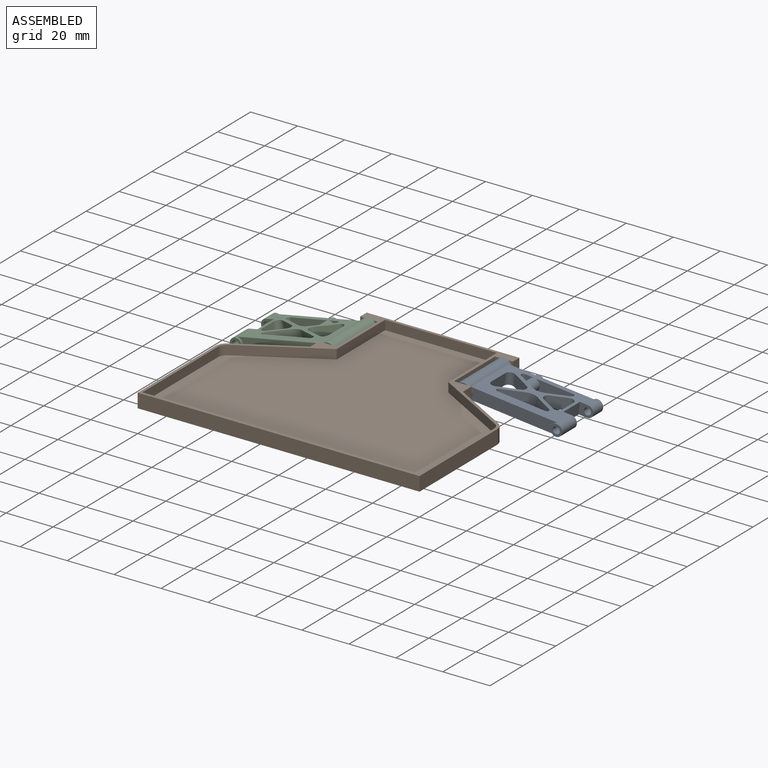
[diagram: assembled view]
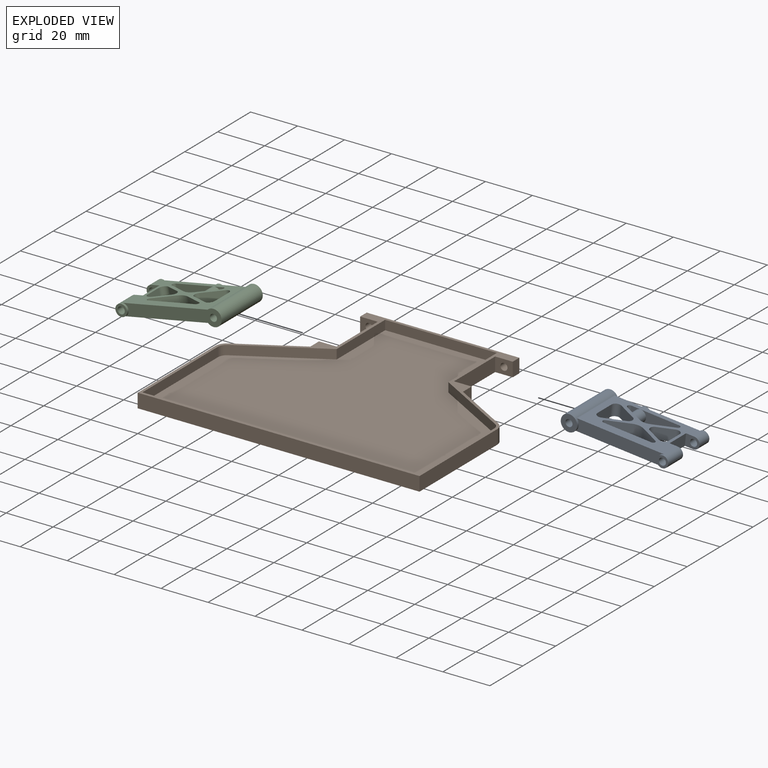
[diagram: exploded view]
GUIDED TOUR — MATED ASSEMBLY (Onshape document acd7721ce6b8d6a2c1b74718, AutoMate assembly acd7721ce6b8d6a2c1b74718_04cc54282d1deeac2c8a38b1_f462e0df83108fd0820fbbd6_default)

This assembly has 3 components, labeled P0..P2 below (a component is one placed occurrence of a part; the same part can appear more than once), held together by 4 mates. A mate is a constraint between two components; its type names the relative motion it leaves free:
  CYLINDRICAL — leaves both rotation about and translation along the listed axis free,
  PLANAR — leaves sliding in the plane through the listed point (normal = the listed direction) and rotation about that normal free.
Axis/direction vectors are unit vectors and 'through' points are millimeter coordinates, both in the assembly's world frame.

MATES
  1. CYLINDRICAL "Cylindrical 1": P0 <-> P1, axis (0.000, -1.000, 0.000) through (88.75, 96.00, 3.00) mm
  2. CYLINDRICAL "Cylindrical 2": P2 <-> P1, axis (0.000, -1.000, 0.000) through (31.25, 96.00, 3.00) mm
  3. PLANAR "Planar 1": P0 <-> P1, direction (0.000, -1.000, 0.000) through (88.75, 71.00, 3.00) mm
  4. PLANAR "Planar 2": P2 <-> P1, direction (0.000, -1.000, 0.000) through (31.25, 71.00, 3.00) mm

ASSEMBLY ORDER
  1. P1 — the base component [order verified]
  2. P2 [order verified]
  3. P0 [order verified]
Order-tag legend:
  [order verified] — this step's position reverses a verified removal order: the component was checked to insert without passing through the ones already placed.

Of the 3 components, 2 carry the full construction recipe — the FeatureScript program that regenerates the part's solid from scratch; the rest are supplied as boundary geometry only.
Each toured component is shown spotlighted twice — in the assembled view, then in the exploded view, where a leader line traces a displaced component back to its assembled socket (saturated green if recipe-attached, orange if geometry-only; every other component desaturated gray) — followed by its recipe or geometry summary and the mates that hold it.
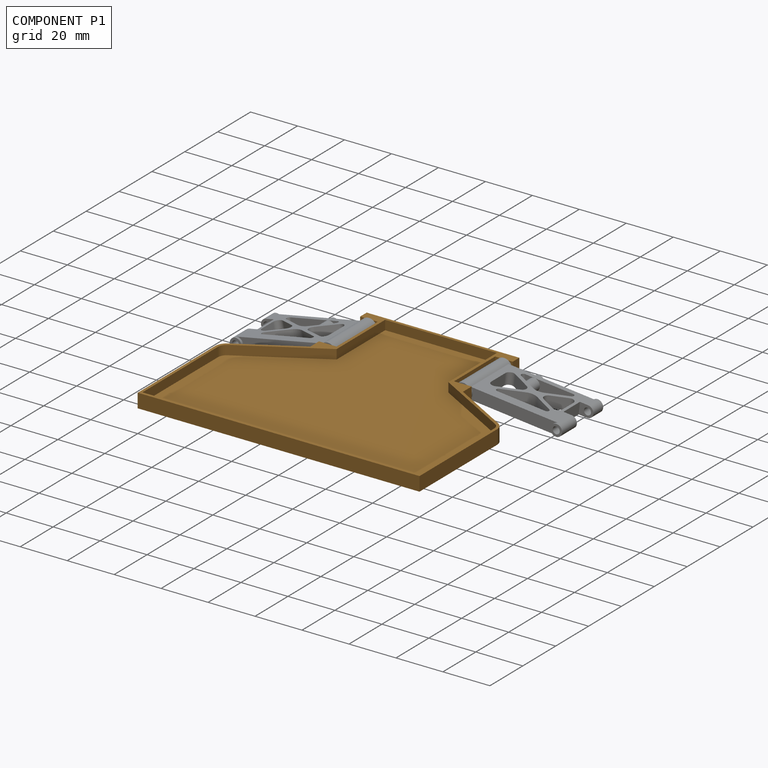
[diagram: component P1 — assembled]
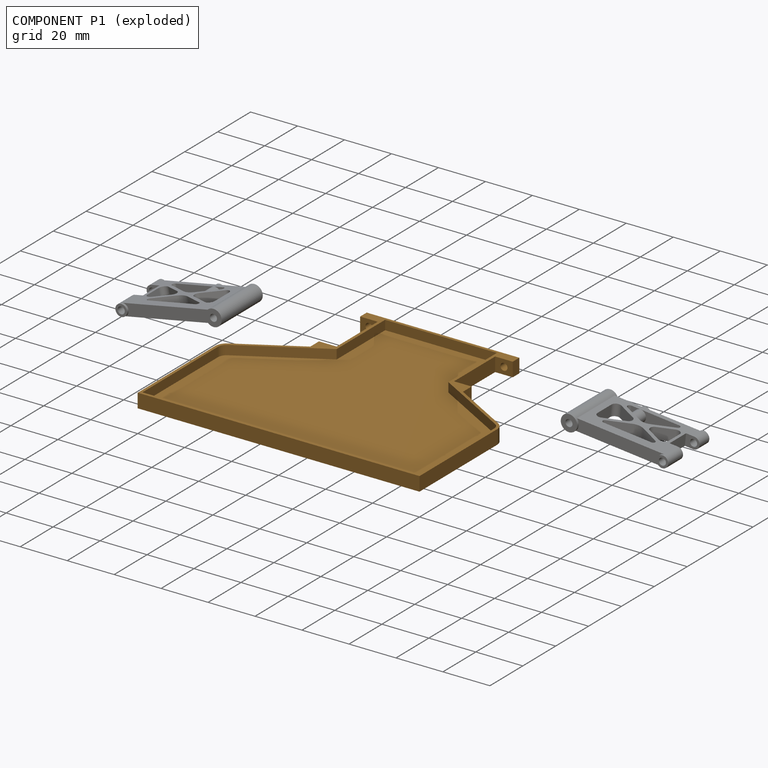
[diagram: component P1 — exploded]
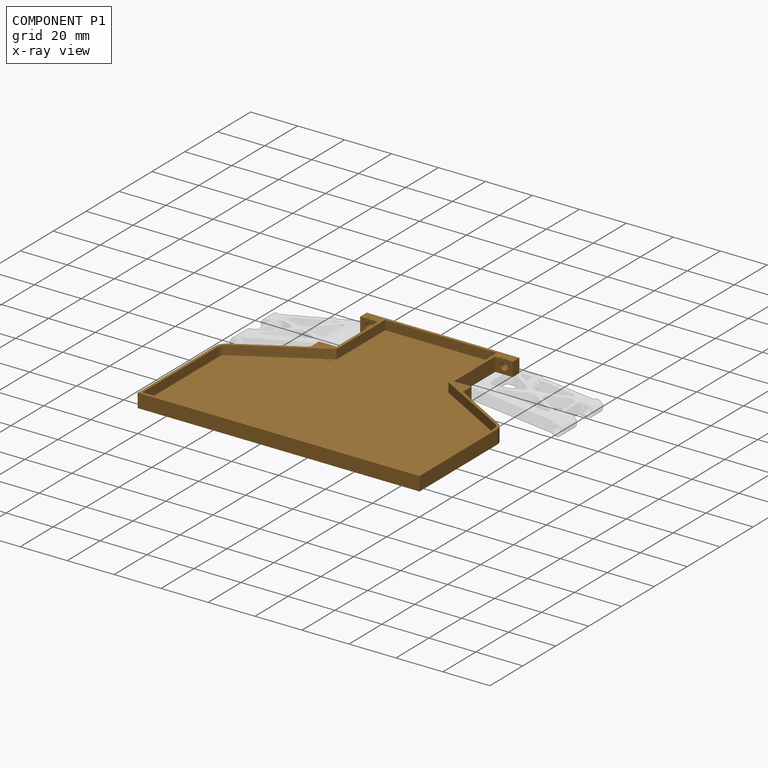
[diagram: component P1 — x-ray view]
COMPONENT P1 — geometry summary (no construction recipe available for this part):
  bounding box: 120.0 x 100.0 x 6.0 mm
  B-rep topology: 1 solid, 38 faces, 204 edges
  volume: 20874 mm^3 (29% of its bounding box)
  symmetry: mirror-symmetric across its x mid-plane
Held by: CYLINDRICAL mate "Cylindrical 1" to P0; CYLINDRICAL mate "Cylindrical 2" to P2; PLANAR mate "Planar 1" to P0; PLANAR mate "Planar 2" to P2.
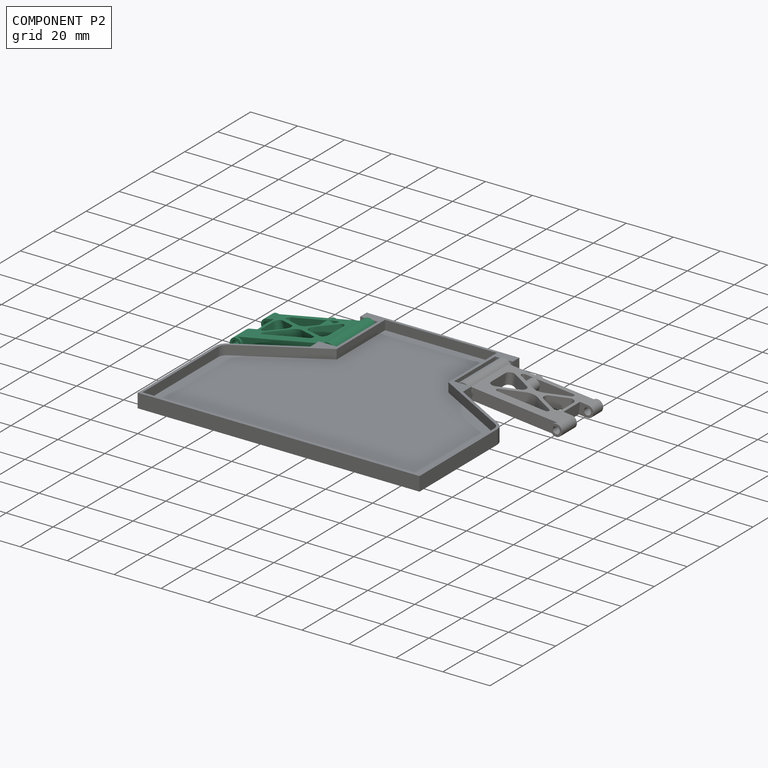
[diagram: component P2 — assembled]
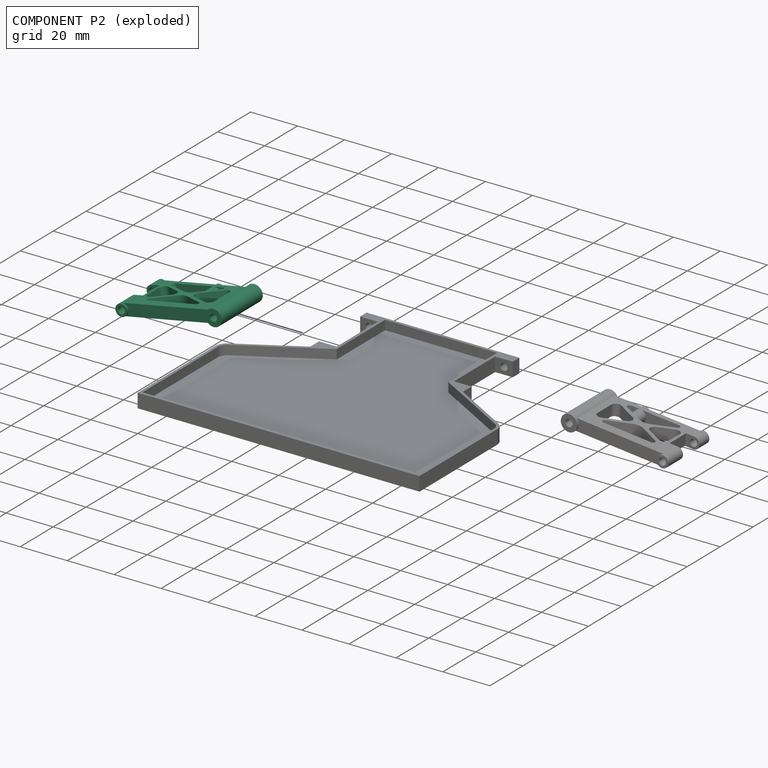
[diagram: component P2 — exploded]
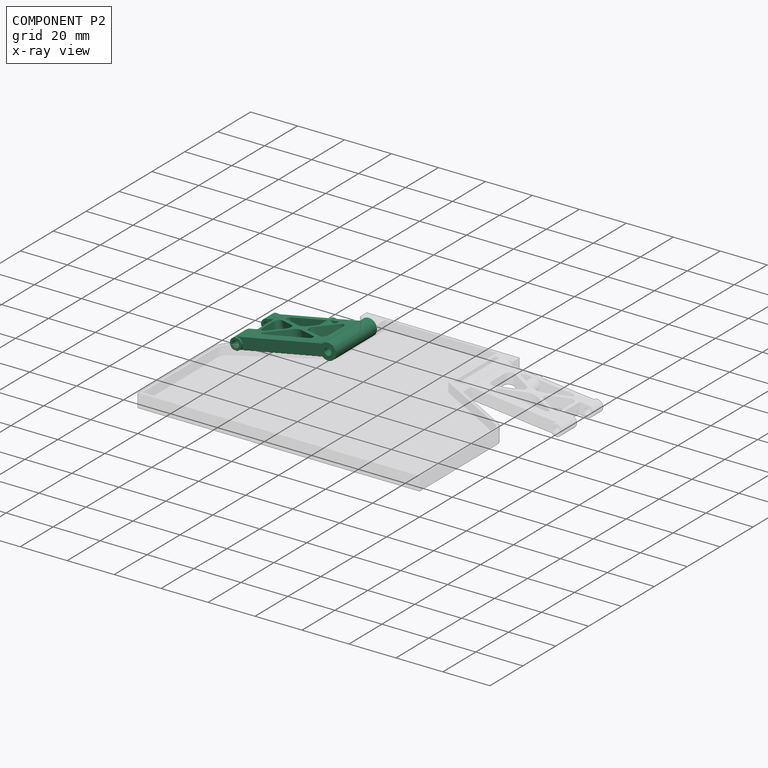
[diagram: component P2 — x-ray view]
COMPONENT P2 — same part as P0 (CADFS 00704449); its construction recipe is shown at P0.
Held by: CYLINDRICAL mate "Cylindrical 2" to P1; PLANAR mate "Planar 2" to P1.
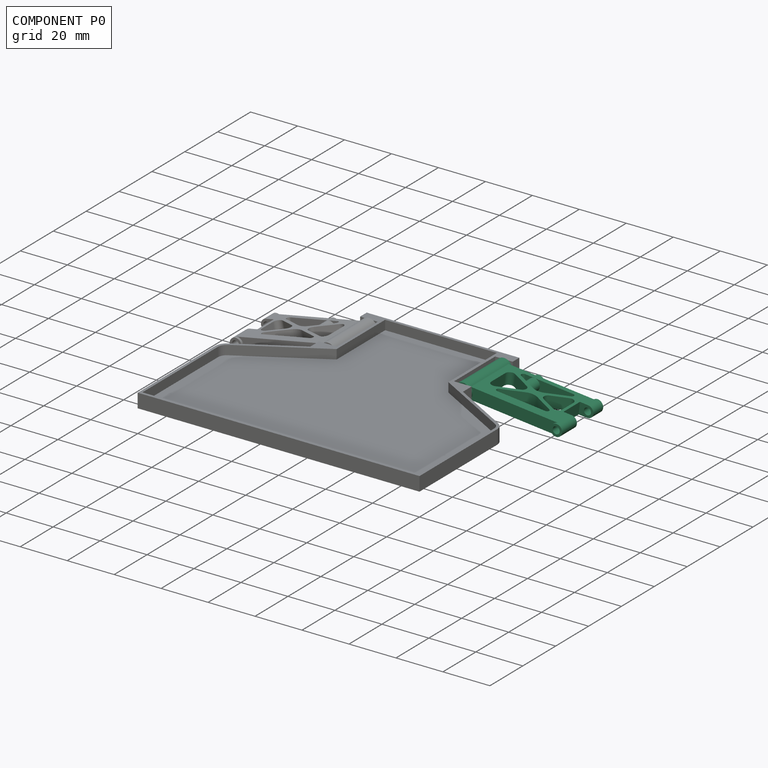
[diagram: component P0 — assembled]
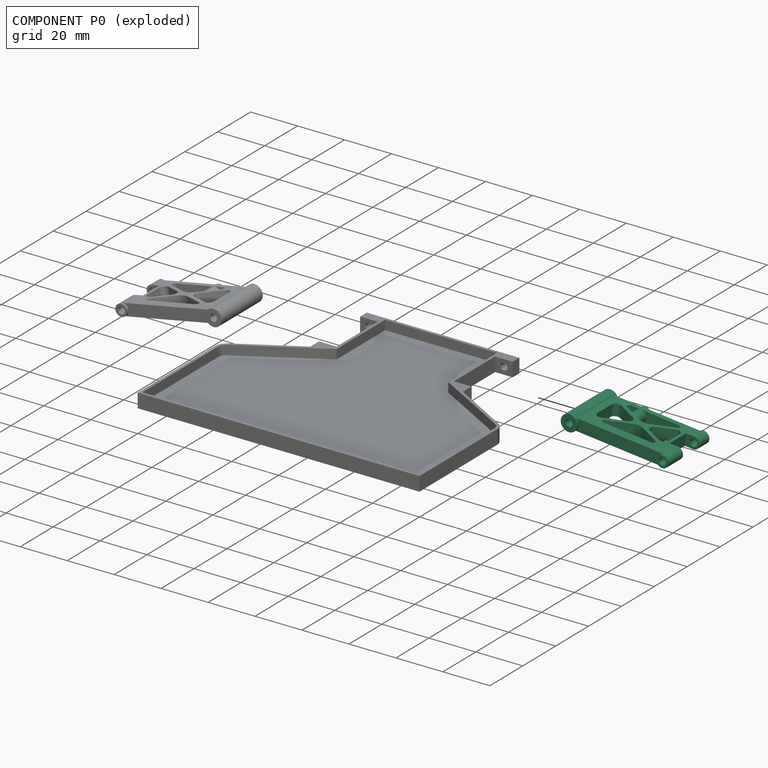
[diagram: component P0 — exploded]
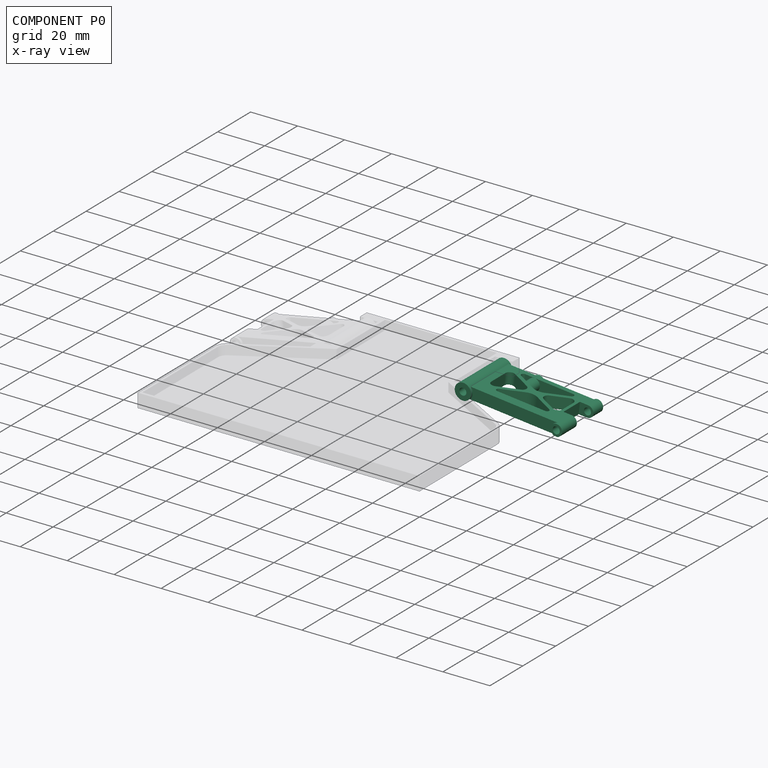
[diagram: component P0 — x-ray view]
COMPONENT P0 — recipe-attached (CADFS 00704449, mesh-verified: the recipe's output STEP matches this component's geometry to below the mesh-comparison resolution (tessellation chordal tolerance ~0.0792 mm)).
Held by: CYLINDRICAL mate "Cylindrical 1" to P1; PLANAR mate "Planar 1" to P1.
Construction recipe (FeatureScript — the CAD program that rebuilds this solid; sketch coordinates are in the units given by the * unit suffixes, e.g. mm):

FeatureScript 2345;
import(path : "onshape/std/geometry.fs", version : "2345.0");
import(path : "onshape/std/common.fs", version : "2345.0");
const mm = millimeter;
const VERTEX = EntityType.VERTEX;
const EDGE = EntityType.EDGE;
const FACE = EntityType.FACE;
const BODY = EntityType.BODY;
function v(x, y){return vector(x, y);}
function OD(order){return orderDisambiguation(order);}
function OSD(set){return originalSetDisambiguation(set);}
function TD(topology){return topologyDisambiguation(topology);}
function TDD(query){return trueDependencyDisambiguation(query);}
function sQuery(a, b, c) {return sketchEntityQuery(a, b, c);}

annotation { "Feature Type Name" : "Feature", "Feature Type Description" : "" }
export const myFeature = defineFeature(function(context is Context, id is Id, definition is map)
    precondition{}
    {
        {
            var Q0;
            Q0=qCreatedBy(makeId("Front.planeOp"),FACE);
            var sketch = newSketch(context, id + "F0", { "sketchPlane" : qUnion([Q0])});
            skCircle(sketch, "E0", {"center": v(0, 0) * mm, "radius": 1.5 * mm});
            skCircle(sketch, "E1", {"center": v(0, 0) * mm, "radius": 3.5 * mm});
            skLineSegment(sketch, "E2", {"start": v(2.45, 2.5) * mm, "end": v(40, 2.5) * mm});
            skLineSegment(sketch, "E3.MirrorCS", {"start": v(2.45, -2.5) * mm, "end": v(40, -2.5) * mm});
            skCircle(sketch, "E4", {"center": v(40, 0) * mm, "radius": 1.5 * mm});
            skCircle(sketch, "E5", {"center": v(40, 0) * mm, "radius": 2.5 * mm});
            skSolve(sketch);
        }
        {
            var Q0;
            Q0=makeQuery(id+"F0.imprint","IMPRINT",FACE,{"disambiguationData":[TD([[makeQuery(id+"F0.imprint","IMPRINT",EDGE,{"derivedFrom":sQuery(id+"F0.wireOp",EDGE,"E0")}),-1.0]])]});
            var Q1;
            {var subQ1=sQuery(id+"F0.wireOp",EDGE,"E2");Q1=makeQuery(id+"F0.imprint","IMPRINT",FACE,{"disambiguationData":[TD([[makeQuery(id+"F0.imprint","IMPRINT",EDGE,{"derivedFrom":subQ1}),-1.0]])]});}
            var Q2;
            Q2=makeQuery(id+"F0.imprint","IMPRINT",FACE,{"disambiguationData":[TD([[makeQuery(id+"F0.imprint","IMPRINT",EDGE,{"derivedFrom":sQuery(id+"F0.wireOp",EDGE,"E4")}),-1.0]])]});
            extrude(context, id + "F1", {"entities" : qUnion([Q0, Q1, Q2]), "oppositeDirection" : true, "depth" : 25 * mm, "offsetDistance" : 25 * mm});
        }
        {
            var Q0;
            {var subQ1=sQuery(id+"F0.wireOp",EDGE,"E2");Q0=makeQuery(id+"F0.imprint","IMPRINT",FACE,{"disambiguationData":[TD([[makeQuery(id+"F0.imprint","IMPRINT",EDGE,{"derivedFrom":subQ1}),-1.0]])]});}
            extrude(context, id + "F2", {"entities" : qUnion([Q0]), "operationType" : NewBodyOperationType.REMOVE, "oppositeDirection" : true, "depth" : 1 * mm, "offsetDistance" : 25 * mm});
        }
        {
            var Q0;
            Q0=makeQuery(id+"F1.opExtrude","SWEPT_FACE",FACE,{"disambiguationData":[OSD([sQuery(id+"F0.wireOp",EDGE,"E2")])]});
            var sketch = newSketch(context, id + "F3", { "sketchPlane" : qUnion([Q0])});
            skLineSegment(sketch, "E6", {"start": v(5.45, 5) * mm, "end": v(37, 5) * mm});
            skLineSegment(sketch, "E7", {"start": v(37, 5) * mm, "end": v(37, 9) * mm});
            skLineSegment(sketch, "E8", {"start": v(37, 22) * mm, "end": v(5.45, 22) * mm});
            skLineSegment(sketch, "E9", {"start": v(5.45, 22) * mm, "end": v(5.45, 5) * mm});
            skLineSegment(sketch, "E10", {"start": v(42.5, 19) * mm, "end": v(42.5, 9) * mm});
            skLineSegment(sketch, "E11", {"start": v(36.5, 19) * mm, "end": v(42.5, 19) * mm});
            skLineSegment(sketch, "E12", {"start": v(36.5, 9) * mm, "end": v(42.5, 9) * mm});
            skLineSegment(sketch, "E13.trimOffspring", {"start": v(37, 19) * mm, "end": v(37, 22) * mm});
            skLineSegment(sketch, "E14", {"start": v(35.42, 22) * mm, "end": v(5.45, 5.85) * mm});
            skLineSegment(sketch, "E15", {"start": v(7.03, 5) * mm, "end": v(37, 21.15) * mm});
            skLineSegment(sketch, "E16", {"start": v(21.22, 22) * mm, "end": v(21.22, 5) * mm, "construction": true});
            skLineSegment(sketch, "E17", {"start": v(5.45, 5) * mm, "end": v(37, 22) * mm, "construction": true});
            skLineSegment(sketch, "E18.MirrorCS", {"start": v(7.03, 22) * mm, "end": v(37, 5.85) * mm});
            skLineSegment(sketch, "E19.MirrorCS", {"start": v(35.42, 5) * mm, "end": v(5.45, 21.15) * mm});
            skLineSegment(sketch, "E20", {"start": v(36.5, 20.88) * mm, "end": v(36.5, 6.12) * mm});
            skLineSegment(sketch, "E21", {"start": v(35.25, 20.2) * mm, "end": v(35.25, 6.8) * mm});
            skSolve(sketch);
        }
        {
            var Q0;
            {var subQ0=sQuery(id+"F3.wireOp",EDGE,"E14");var subQ1=sQuery(id+"F3.wireOp",EDGE,"E9");var subQ2=makeQuery(id+"F3.imprint","INTERSECT",VERTEX,{"derivedFrom":[subQ1,subQ0]});Q0=makeQuery(id+"F3.imprint","IMPRINT",FACE,{"disambiguationData":[TD([[makeQuery(id+"F3.imprint","IMPRINT",EDGE,{"disambiguationData":[TD([[subQ2,1.0]])],"derivedFrom":subQ1}),1.0]])]});}
            var Q1;
            {var subQ0=sQuery(id+"F3.wireOp",EDGE,"E14");var subQ1=sQuery(id+"F3.wireOp",EDGE,"E8");var subQ2=makeQuery(id+"F3.imprint","INTERSECT",VERTEX,{"derivedFrom":[subQ1,subQ0]});Q1=makeQuery(id+"F3.imprint","IMPRINT",FACE,{"disambiguationData":[TD([[makeQuery(id+"F3.imprint","IMPRINT",EDGE,{"disambiguationData":[TD([[subQ2,-1.0]])],"derivedFrom":subQ1}),1.0]])]});}
            var Q2;
            {var subQ0=sQuery(id+"F3.wireOp",EDGE,"E15");var subQ1=sQuery(id+"F3.wireOp",EDGE,"E6");var subQ2=makeQuery(id+"F3.imprint","INTERSECT",VERTEX,{"derivedFrom":[subQ1,subQ0]});Q2=makeQuery(id+"F3.imprint","IMPRINT",FACE,{"disambiguationData":[TD([[makeQuery(id+"F3.imprint","IMPRINT",EDGE,{"disambiguationData":[TD([[subQ2,-1.0]])],"derivedFrom":subQ1}),1.0]])]});}
            var Q3;
            {var subQ0=sQuery(id+"F3.wireOp",EDGE,"E21");Q3=makeQuery(id+"F3.imprint","IMPRINT",FACE,{"disambiguationData":[TD([[makeQuery(id+"F3.imprint","IMPRINT",EDGE,{"derivedFrom":subQ0}),-1.0]])]});}
            var Q4;
            {var subQ4=sQuery(id+"F3.wireOp",EDGE,"E20");var subQ6=sQuery(id+"F3.wireOp",EDGE,"E11");var subQ7=makeQuery(id+"F3.imprint","INTERSECT",VERTEX,{"derivedFrom":[subQ6,subQ4]});Q4=makeQuery(id+"F3.imprint","IMPRINT",FACE,{"disambiguationData":[TD([[makeQuery(id+"F3.imprint","IMPRINT",EDGE,{"disambiguationData":[TD([[subQ7,-1.0]])],"derivedFrom":subQ6}),-1.0]])]});}
            var Q5;
            {var subQ0=sQuery(id+"F3.wireOp",EDGE,"E10");Q5=makeQuery(id+"F3.imprint","IMPRINT",FACE,{"disambiguationData":[TD([[makeQuery(id+"F3.imprint","IMPRINT",EDGE,{"derivedFrom":subQ0}),-1.0]])]});}
            extrude(context, id + "F4", {"entities" : qUnion([Q0, Q1, Q2, Q3, Q4, Q5]), "operationType" : NewBodyOperationType.REMOVE, "oppositeDirection" : true, "depth" : 25 * mm, "offsetDistance" : 25 * mm});
        }
        {
            var Q0;
            Q0=makeQuery(id+"F4.boolean.opBoolean","COPY",EDGE,{"derivedFrom":makeQuery(id+"F4.opExtrude","SWEPT_EDGE",EDGE,{"disambiguationData":[OSD([sQuery(id+"F3.wireOp",EDGE,"E14"),sQuery(id+"F3.wireOp",EDGE,"E18.MirrorCS")])]})});
            var Q1;
            Q1=makeQuery(id+"F4.boolean.opBoolean","COPY",EDGE,{"derivedFrom":makeQuery(id+"F4.opExtrude","SWEPT_EDGE",EDGE,{"disambiguationData":[OSD([sQuery(id+"F3.wireOp",EDGE,"E15"),sQuery(id+"F3.wireOp",EDGE,"E19.MirrorCS")])]})});
            fillet(context, id + "F5", {"entities" : qUnion([Q0, Q1]), "tangentPropagation" : true, "radius" : 5 * mm, "defaultsChanged" : false, "vertexSettings" : [], "allowEdgeOverflow" : false});
        }
        {
            var Q0;
            Q0=makeQuery(id+"F4.boolean.opBoolean","COPY",EDGE,{"derivedFrom":makeQuery(id+"F4.opExtrude","SWEPT_EDGE",EDGE,{"disambiguationData":[OSD([sQuery(id+"F3.wireOp",EDGE,"E9"),sQuery(id+"F3.wireOp",EDGE,"E19.MirrorCS")])]})});
            var Q1;
            Q1=makeQuery(id+"F4.boolean.opBoolean","COPY",EDGE,{"derivedFrom":makeQuery(id+"F4.opExtrude","SWEPT_EDGE",EDGE,{"disambiguationData":[OSD([sQuery(id+"F3.wireOp",EDGE,"E9"),sQuery(id+"F3.wireOp",EDGE,"E14")])]})});
            var Q2;
            Q2=makeQuery(id+"F4.boolean.opBoolean","COPY",EDGE,{"derivedFrom":makeQuery(id+"F4.opExtrude","SWEPT_EDGE",EDGE,{"disambiguationData":[OSD([sQuery(id+"F3.wireOp",EDGE,"E18.MirrorCS"),sQuery(id+"F3.wireOp",EDGE,"E21")])]})});
            var Q3;
            Q3=makeQuery(id+"F4.boolean.opBoolean","COPY",EDGE,{"derivedFrom":makeQuery(id+"F4.opExtrude","SWEPT_EDGE",EDGE,{"disambiguationData":[OSD([sQuery(id+"F3.wireOp",EDGE,"E15"),sQuery(id+"F3.wireOp",EDGE,"E21")])]})});
            var Q4;
            Q4=makeQuery(id+"F4.boolean.opBoolean","COPY",EDGE,{"derivedFrom":makeQuery(id+"F4.opExtrude","SWEPT_EDGE",EDGE,{"disambiguationData":[OSD([sQuery(id+"F3.wireOp",EDGE,"E15"),sQuery(id+"F3.wireOp",EDGE,"E18.MirrorCS")])]})});
            var Q5;
            Q5=makeQuery(id+"F4.boolean.opBoolean","COPY",EDGE,{"derivedFrom":makeQuery(id+"F4.opExtrude","SWEPT_EDGE",EDGE,{"disambiguationData":[OSD([sQuery(id+"F3.wireOp",EDGE,"E14"),sQuery(id+"F3.wireOp",EDGE,"E19.MirrorCS")])]})});
            fillet(context, id + "F6", {"entities" : qUnion([Q0, Q1, Q2, Q3, Q4, Q5]), "tangentPropagation" : true, "radius" : 2 * mm, "defaultsChanged" : false, "vertexSettings" : [], "allowEdgeOverflow" : false});
        }
        {
            var Q0;
            Q0=makeQuery(id+"F4.boolean.opBoolean","COPY",EDGE,{"derivedFrom":makeQuery(id+"F4.opExtrude","SWEPT_EDGE",EDGE,{"disambiguationData":[OSD([sQuery(id+"F3.wireOp",EDGE,"E8"),sQuery(id+"F3.wireOp",EDGE,"E18.MirrorCS")])]})});
            var Q1;
            Q1=makeQuery(id+"F4.boolean.opBoolean","COPY",EDGE,{"derivedFrom":makeQuery(id+"F4.opExtrude","SWEPT_EDGE",EDGE,{"disambiguationData":[OSD([sQuery(id+"F3.wireOp",EDGE,"E8"),sQuery(id+"F3.wireOp",EDGE,"E14")])]})});
            var Q2;
            Q2=makeQuery(id+"F4.boolean.opBoolean","COPY",EDGE,{"derivedFrom":makeQuery(id+"F4.opExtrude","SWEPT_EDGE",EDGE,{"disambiguationData":[OSD([sQuery(id+"F3.wireOp",EDGE,"E6"),sQuery(id+"F3.wireOp",EDGE,"E15")])]})});
            var Q3;
            Q3=makeQuery(id+"F4.boolean.opBoolean","COPY",EDGE,{"derivedFrom":makeQuery(id+"F4.opExtrude","SWEPT_EDGE",EDGE,{"disambiguationData":[OSD([sQuery(id+"F3.wireOp",EDGE,"E6"),sQuery(id+"F3.wireOp",EDGE,"E19.MirrorCS")])]})});
            fillet(context, id + "F7", {"entities" : qUnion([Q0, Q1, Q2, Q3]), "tangentPropagation" : true, "radius" : 1 * mm, "defaultsChanged" : false, "vertexSettings" : [], "allowEdgeOverflow" : false});
        }
        {
            var Q0;
            Q0=makeQuery(id+"F1.opExtrude","CAP_FACE",FACE,{"disambiguationData":[OSD([sQuery(id+"F0.wireOp",EDGE,"E0"),sQuery(id+"F0.wireOp",EDGE,"E1"),sQuery(id+"F0.wireOp",EDGE,"E2"),sQuery(id+"F0.wireOp",EDGE,"E3.MirrorCS"),sQuery(id+"F0.wireOp",EDGE,"E4"),sQuery(id+"F0.wireOp",EDGE,"E5")])],"isStart":false});
            var sketch = newSketch(context, id + "F8", { "sketchPlane" : qUnion([Q0])});
            skCircle(sketch, "E22", {"center": v(-15, 0) * mm, "radius": 1.38 * mm});
            skCircle(sketch, "E23", {"center": v(-15, 0) * mm, "radius": 2.5 * mm});
            skLineSegment(sketch, "E24.0", {"start": v(-2.45, 2.5) * mm, "end": v(-40, 2.5) * mm});
            skCircle(sketch, "E25.0", {"center": v(0, 0) * mm, "radius": 3.5 * mm});
            skLineSegment(sketch, "E26.0", {"start": v(-2.45, -2.5) * mm, "end": v(-40, -2.5) * mm});
            skCircle(sketch, "E27.0", {"center": v(-40, 0) * mm, "radius": 2.5 * mm});
            skSolve(sketch);
        }
        {
            var Q0;
            {var subQ0=sQuery(id+"F8.wireOp",EDGE,"E24.0");var subQ1=sQuery(id+"F8.wireOp",EDGE,"E23");var subQ2=makeQuery(id+"F8.imprint","INTERSECT",VERTEX,{"derivedFrom":[subQ1,subQ0]});Q0=makeQuery(id+"F8.imprint","IMPRINT",FACE,{"disambiguationData":[TD([[makeQuery(id+"F8.imprint","IMPRINT",EDGE,{"disambiguationData":[TD([[subQ2,-1.0]])],"derivedFrom":subQ1}),-1.0]])]});}
            var Q1;
            {var subQ0=sQuery(id+"F8.wireOp",EDGE,"E24.0");var subQ1=sQuery(id+"F8.wireOp",EDGE,"E23");var subQ2=makeQuery(id+"F8.imprint","INTERSECT",VERTEX,{"derivedFrom":[subQ1,subQ0]});Q1=makeQuery(id+"F8.imprint","IMPRINT",FACE,{"disambiguationData":[TD([[makeQuery(id+"F8.imprint","IMPRINT",EDGE,{"disambiguationData":[TD([[subQ2,1.0]])],"derivedFrom":subQ1}),-1.0]])]});}
            extrude(context, id + "F9", {"entities" : qUnion([Q0, Q1]), "operationType" : NewBodyOperationType.REMOVE, "oppositeDirection" : true, "depth" : 1 * mm, "offsetDistance" : 25 * mm});
        }
        {
            var Q0;
            Q0=makeQuery(id+"F8.imprint","IMPRINT",FACE,{"disambiguationData":[TD([[makeQuery(id+"F8.imprint","IMPRINT",EDGE,{"derivedFrom":sQuery(id+"F8.wireOp",EDGE,"E22")}),-1.0]])]});
            var Q1;
            {var subQ0=sQuery(id+"F3.wireOp",EDGE,"E18.MirrorCS");Q1=makeQuery(id+"F4.boolean.opBoolean","COPY",FACE,{"derivedFrom":makeQuery(id+"F4.opExtrude","SWEPT_FACE",FACE,{"disambiguationData":[OSD([subQ0]),TDD([makeQuery(id+"F3.imprint","IMPRINT",EDGE,{"disambiguationData":[TD([[makeQuery(id+"F3.imprint","INTERSECT",VERTEX,{"derivedFrom":[sQuery(id+"F3.wireOp",EDGE,"E8"),subQ0]}),-1.0]])],"derivedFrom":subQ0})])]})});}
            extrude(context, id + "F10", {"entities" : qUnion([Q0]), "operationType" : NewBodyOperationType.ADD, "endBound" : BoundingType.UP_TO_SURFACE, "oppositeDirection" : true, "depth" : 25 * mm, "endBoundEntityFace" : qUnion([Q1]), "offsetDistance" : 25 * mm});
        }
        {
            var Q0;
            Q0=makeQuery(id+"F8.imprint","IMPRINT",FACE,{"disambiguationData":[TD([[makeQuery(id+"F8.imprint","IMPRINT",EDGE,{"derivedFrom":sQuery(id+"F8.wireOp",EDGE,"E22")}),1.0]])]});
            var Q1;
            {var subQ0=sQuery(id+"F3.wireOp",EDGE,"E18.MirrorCS");var subQ1=sQuery(id+"F3.wireOp",EDGE,"E14");var subQ2=makeQuery(id+"F4.boolean.opBoolean","COPY",FACE,{"derivedFrom":makeQuery(id+"F4.opExtrude","SWEPT_FACE",FACE,{"disambiguationData":[OSD([subQ0]),TDD([makeQuery(id+"F3.imprint","IMPRINT",EDGE,{"disambiguationData":[TD([[makeQuery(id+"F3.imprint","INTERSECT",VERTEX,{"derivedFrom":[sQuery(id+"F3.wireOp",EDGE,"E8"),subQ0]}),-1.0]])],"derivedFrom":subQ0})])]})});Q1=makeQuery(id+"F10.boolean.opBoolean","SPLIT",FACE,{"disambiguationData":[TD([makeQuery(id+"F5.opFillet","BLEND_FACE",FACE,{"disambiguationData":[OSD([subQ1,subQ0])]})])],"derivedFrom":subQ2});}
            extrude(context, id + "F11", {"entities" : qUnion([Q0]), "operationType" : NewBodyOperationType.REMOVE, "endBound" : BoundingType.UP_TO_SURFACE, "oppositeDirection" : true, "depth" : 25 * mm, "endBoundEntityFace" : qUnion([Q1]), "offsetDistance" : 25 * mm});
        }
    });
PROVENANCE & LICENSES
Assembly (occurrences, transforms, mates, per-part STEP geometry): AutoMate dataset, Zenodo record 7776208, CC0.
Construction recipes: CADFS (HuggingFace VladPyatov/CADFS, CC-BY-4.0, layered over the ABC dataset), FeatureScript reconstruction programs keyed by ABC model id.
Join: ABC meta listings map ABC model id -> Onshape documentId; within a shared document, parts are matched by geometric signature (bounding-box dims + volume at 0.1% relative tolerance, exact B-rep face/solid counts).
Verification: 2 of this assembly's 3 components carry a recipe attachment, and every attachment is mesh-verified: the CADFS STEP and the AutoMate member STEP were compared as meshes in their shared local frame (symmetric sampled-point-to-mesh distance); worst across the 2 attachments: below the mesh-comparison resolution (tessellation chordal tolerance ~0.0792 mm) on a 53 mm part.
Renders: orthographic iso camera (az 35 / el 25); the floor grid conveys scale (grid pitch printed in each image; no ruler). In the exploded view each component is displaced by its stored offset vector: the offsets alone carry the explosion direction (mate normal/axis signs are not orientation cues and do not encode it), and separation distances are assigned per mate-chain, not proportionally to assembly-order depth.
